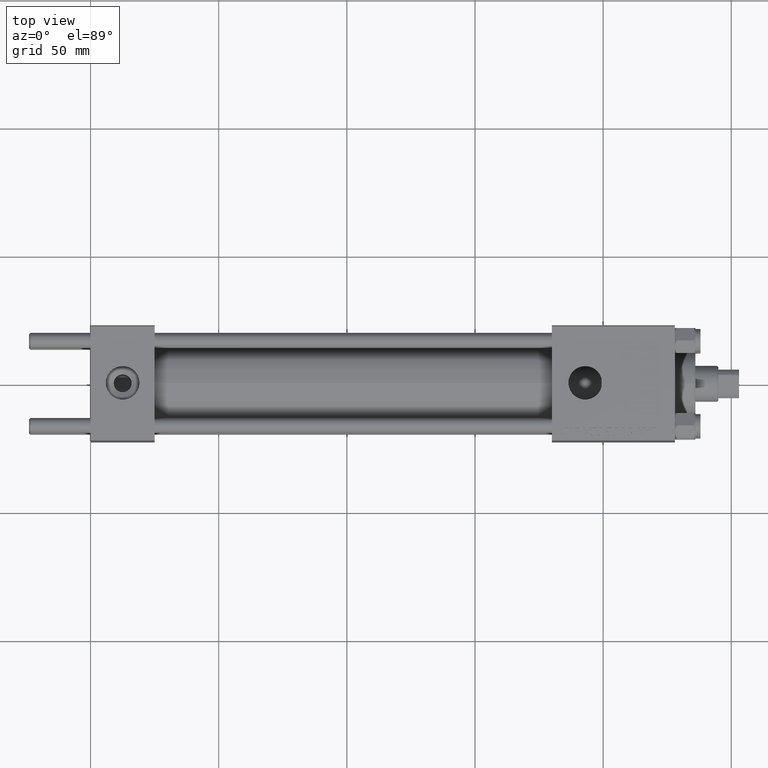
[diagram: clean part render]
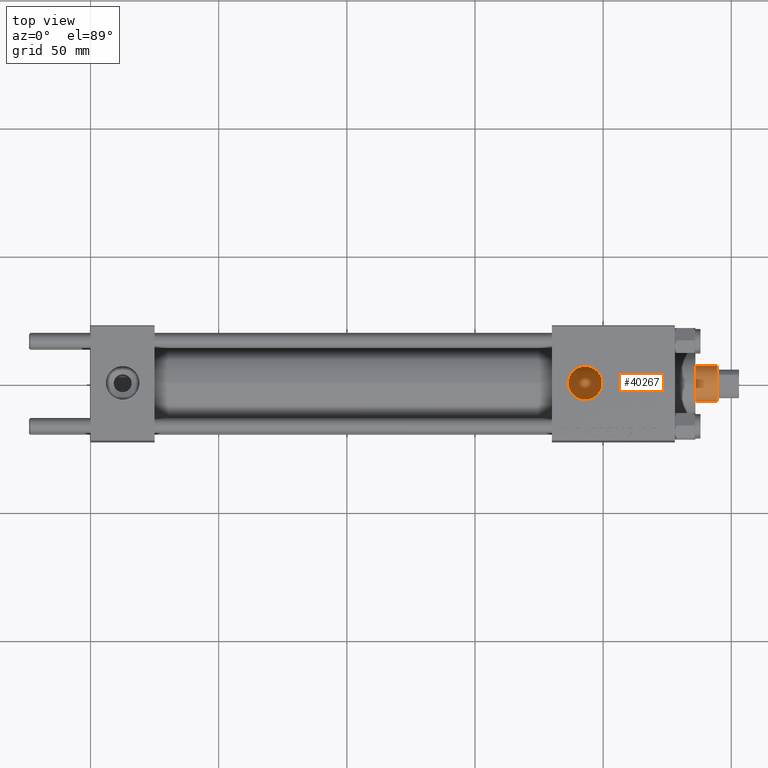
[diagram: same view with one face highlighted and labeled with its STEP entity id]
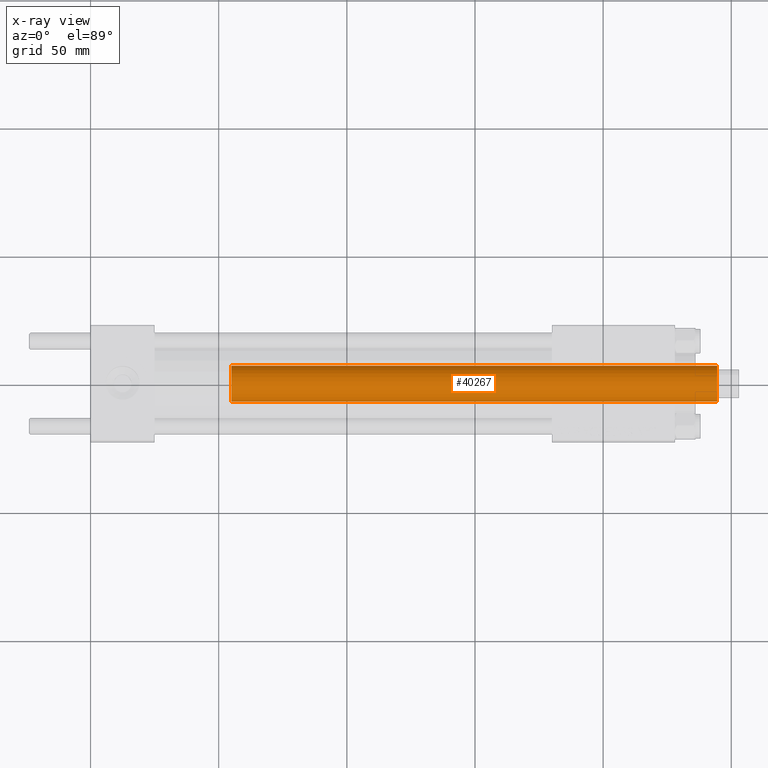
[diagram: x-ray of the same camera — body ghosted, the highlighted face saturated]
A machine part, top view. The second image highlights one B-rep face of the part: STEP entity #40267.
The next image is the same camera in x-ray: the body ghosted, the highlighted face saturated — about 0% of this face is hidden behind the body in this view.
In plain terms, the highlighted cylindrical surface (edge-blend (fillet) strip) has radius 7 mm, axis along (-1, 0, 0).
Its self-contained STEP definition (entity closure, byte-faithful):
#718 = DIRECTION ( 'NONE',  ( 0.000000000000000000, 0.000000000000000000, -1.000000000000000000 ) ) ;
#1101 = CYLINDRICAL_SURFACE ( 'NONE', #42300, 7.000000000000000000 ) ;
#1502 = CARTESIAN_POINT ( 'NONE',  ( 0.000000000000000000, 0.000000000000000000, 219.4999999999999716 ) ) ;
#2303 = CARTESIAN_POINT ( 'NONE',  ( 7.000000000000000000, 8.572527594031473190E-16, 219.4999999999999716 ) ) ;
#3646 = EDGE_LOOP ( 'NONE', ( #16459, #44700, #4409, #27676 ) ) ;
#4409 = ORIENTED_EDGE ( 'NONE', *, *, #39150, .T. ) ;
#5215 = DIRECTION ( 'NONE',  ( 1.000000000000000000, 0.000000000000000000, 0.000000000000000000 ) ) ;
#9234 = DIRECTION ( 'NONE',  ( -1.000000000000000000, 0.000000000000000000, 0.000000000000000000 ) ) ;
#11293 = VERTEX_POINT ( 'NONE', #20539 ) ;
#11484 = DIRECTION ( 'NONE',  ( -0.000000000000000000, -0.000000000000000000, -1.000000000000000000 ) ) ;
#11749 = LINE ( 'NONE', #27739, #15338 ) ;
#13458 = LINE ( 'NONE', #30228, #19638 ) ;
#15338 = VECTOR ( 'NONE', #11484, 1000.000000000000000 ) ;
#16054 = VERTEX_POINT ( 'NONE', #50422 ) ;
#16459 = ORIENTED_EDGE ( 'NONE', *, *, #35233, .F. ) ;
#19638 = VECTOR ( 'NONE', #37314, 1000.000000000000000 ) ;
#20539 = CARTESIAN_POINT ( 'NONE',  ( 7.000000000000000000, 8.572527594031473190E-16, 30.00000000000000000 ) ) ;
#20771 = DIRECTION ( 'NONE',  ( -0.000000000000000000, -0.000000000000000000, -1.000000000000000000 ) ) ;
#21736 = CIRCLE ( 'NONE', #46023, 7.000000000000000000 ) ;
#22858 = EDGE_CURVE ( 'NONE', #45869, #11293, #46653, .T. ) ;
#27676 = ORIENTED_EDGE ( 'NONE', *, *, #22858, .T. ) ;
#27739 = CARTESIAN_POINT ( 'NONE',  ( 7.000000000000000000, 8.572527594031473190E-16, 220.0000000000000000 ) ) ;
#28844 = EDGE_CURVE ( 'NONE', #33989, #16054, #21736, .T. ) ;
#29418 = FACE_OUTER_BOUND ( 'NONE', #3646, .T. ) ;
#30228 = CARTESIAN_POINT ( 'NONE',  ( -7.000000000000000000, 0.000000000000000000, 220.0000000000000000 ) ) ;
#32703 = DIRECTION ( 'NONE',  ( 1.000000000000000000, 0.000000000000000000, 0.000000000000000000 ) ) ;
#33989 = VERTEX_POINT ( 'NONE', #2303 ) ;
#35233 = EDGE_CURVE ( 'NONE', #33989, #11293, #11749, .T. ) ;
#37314 = DIRECTION ( 'NONE',  ( -0.000000000000000000, -0.000000000000000000, -1.000000000000000000 ) ) ;
#38120 = CARTESIAN_POINT ( 'NONE',  ( -7.000000000000000000, 0.000000000000000000, 30.00000000000000000 ) ) ;
#39150 = EDGE_CURVE ( 'NONE', #16054, #45869, #13458, .T. ) ;
#39919 = AXIS2_PLACEMENT_3D ( 'NONE', #45089, #41142, #5215 ) ;
#40267 = ADVANCED_FACE ( 'NONE', ( #29418 ), #1101, .T. ) ;
#40699 = CARTESIAN_POINT ( 'NONE',  ( 0.000000000000000000, 0.000000000000000000, 220.0000000000000000 ) ) ;
#41142 = DIRECTION ( 'NONE',  ( 0.000000000000000000, 0.000000000000000000, 1.000000000000000000 ) ) ;
#42300 = AXIS2_PLACEMENT_3D ( 'NONE', #40699, #20771, #9234 ) ;
#44700 = ORIENTED_EDGE ( 'NONE', *, *, #28844, .T. ) ;
#45089 = CARTESIAN_POINT ( 'NONE',  ( 0.000000000000000000, 0.000000000000000000, 30.00000000000000000 ) ) ;
#45869 = VERTEX_POINT ( 'NONE', #38120 ) ;
#46023 = AXIS2_PLACEMENT_3D ( 'NONE', #1502, #718, #32703 ) ;
#46653 = CIRCLE ( 'NONE', #39919, 7.000000000000000000 ) ;
#50422 = CARTESIAN_POINT ( 'NONE',  ( -7.000000000000000000, 0.000000000000000000, 219.4999999999999716 ) ) ;